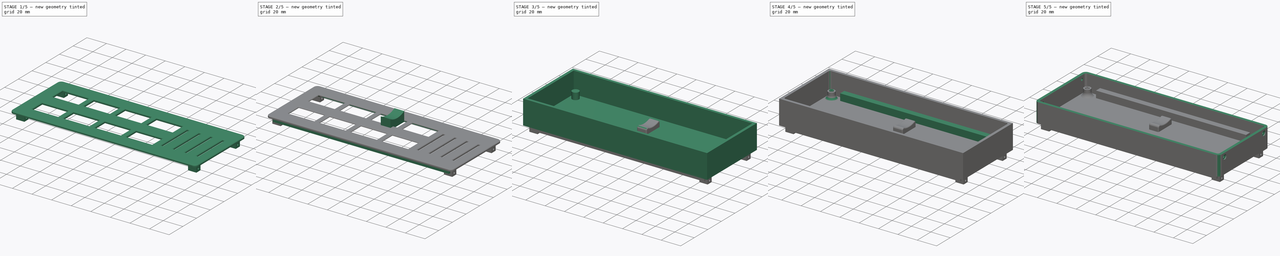
[diagram: build sequence overview — one tinted view per stage of 5, left to right]
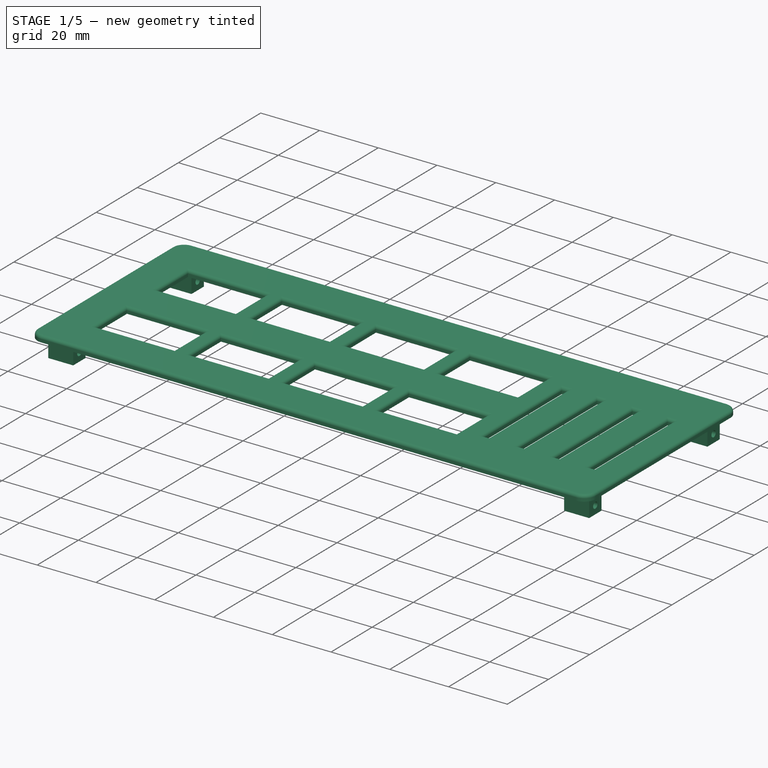
[diagram: stage 1 of 5 — iso view after this stage's code; geometry added in this stage tinted green]
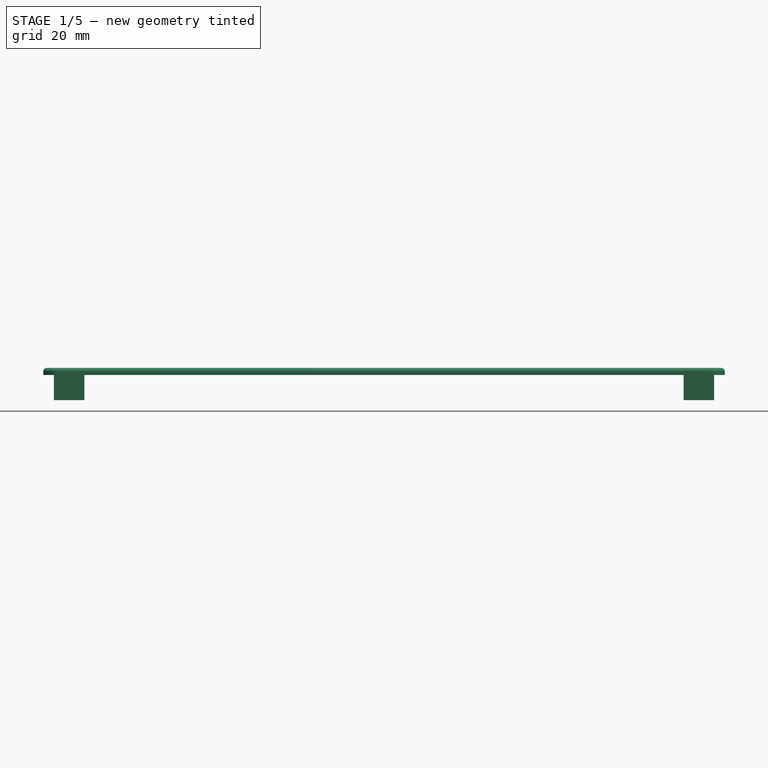
[diagram: stage 1 of 5 — front view after this stage's code; geometry added in this stage tinted green]
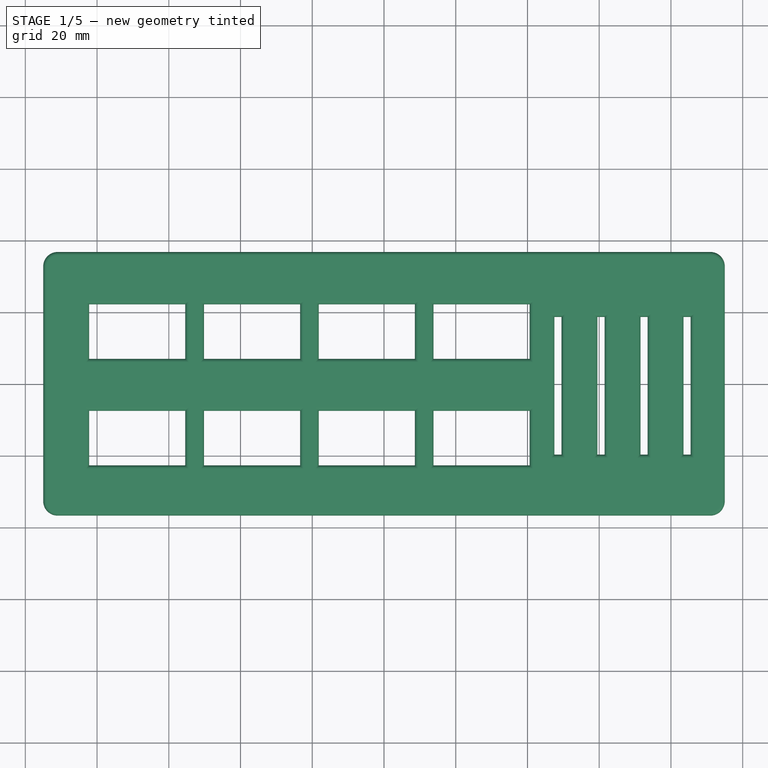
[diagram: stage 1 of 5 — top view after this stage's code; geometry added in this stage tinted green]
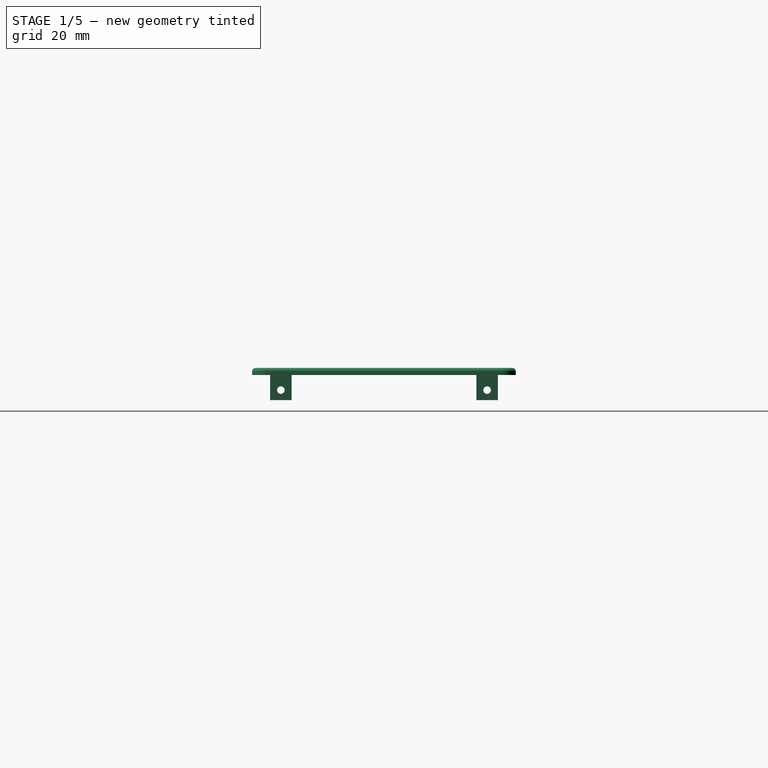
[diagram: stage 1 of 5 — right view after this stage's code; geometry added in this stage tinted green]
FCSTD DOCUMENT  (FreeCAD 0.19R24291 (Git))
Label: streamdekc
License: All rights reserved
LicenseURL: http://en.wikipedia.org/wiki/All_rights_reserved
objects: Sketcher::SketchObject×20, PartDesign::Pocket×13, PartDesign::Pad×8, PartDesign::Fillet×8, PartDesign::Chamfer×3, PartDesign::Body×3
note: 87 computed .brp shape members not serialized (recipe doc carries the construction recipe); baked Part::Feature solids carry a one-line shape summary decoded from their .brp

FEATURE [PartDesign::Body] Body  label="Base"
  Group = -> [Sketch,Pad,Sketch001,Pocket,Sketch002,Pad001,Chamfer,Fillet,Sketch003,Pocket001,Sketch004,Pocket002,Sketch005,Pad002,Sketch006,Pad003,Fillet001,Sketch007,Pocket003,Fillet002,Sketch008,Pocket004,Sketch009,Pocket005,Sketch010,Pocket006,Fillet003]
  Origin = -> Origin
  Tip = -> Fillet003
FEATURE [Sketcher::SketchObject] Sketch011
  FullyConstrained = true
  MapMode = 5
  Support = -> [XY_Plane001]
  sketch-geometry (4):
    g0: LineSegment StartX=-95 StartY=36.75 StartZ=0 EndX=95 EndY=36.75 EndZ=0
    g1: LineSegment StartX=95 StartY=36.75 StartZ=0 EndX=95 EndY=-36.75 EndZ=0
    g2: LineSegment StartX=95 StartY=-36.75 StartZ=0 EndX=-95 EndY=-36.75 EndZ=0
    g3: LineSegment StartX=-95 StartY=-36.75 StartZ=0 EndX=-95 EndY=36.75 EndZ=0
  constraints (12):
    c: Coincident(g0,g1)
    c: Coincident(g1,g2)
    c: Coincident(g2,g3)
    c: Coincident(g3,g0)
    c: Horizontal(g0)
    c: Horizontal(g2)
    c: Vertical(g1)
    c: Vertical(g3)
    c: DistanceX(g2,g2) = 190
    c: DistanceY(g1,g1) = 73.5
    c: DistanceY(g-1,g0) = 36.75
    c: DistanceX(g-1,g1) = 95
FEATURE [PartDesign::Pad] Pad004
  Direction = (1,1,1)
  Length = 2
  Length2 = 100
  Profile = -> Sketch011
  Type = 0
FEATURE [PartDesign::Fillet] Fillet004
  Base = -> Pad004 [Edge5,Edge2,Edge1,Edge8]
  BaseFeature = -> Pad004
  Radius = 4
  SupportTransform = false
FEATURE [Sketcher::SketchObject] Sketch012
  ExternalGeometry = -> [Fillet004]
  FullyConstrained = true
  MapMode = 5
  Placement = pos=(0,0,2) rot=(0,0,1;0rad)
  Support = -> [Fillet004]
  sketch-geometry (48):
    g0: LineSegment StartX=-82.2 StartY=22.15 StartZ=0 EndX=-55.4 EndY=22.15 EndZ=0
    g1: LineSegment StartX=-55.4 StartY=22.15 StartZ=0 EndX=-55.4 EndY=6.95 EndZ=0
    g2: LineSegment StartX=-55.4 StartY=6.95 StartZ=0 EndX=-82.2 EndY=6.95 EndZ=0
    g3: LineSegment StartX=-82.2 StartY=6.95 StartZ=0 EndX=-82.2 EndY=22.15 EndZ=0
    g4: LineSegment StartX=-82.2 StartY=-7.55 StartZ=0 EndX=-55.4 EndY=-7.55 EndZ=0
    g5: LineSegment StartX=-55.4 StartY=-7.55 StartZ=0 EndX=-55.4 EndY=-22.75 EndZ=0
    g6: LineSegment StartX=-55.4 StartY=-22.75 StartZ=0 EndX=-82.2 EndY=-22.75 EndZ=0
    g7: LineSegment StartX=-82.2 StartY=-22.75 StartZ=0 EndX=-82.2 EndY=-7.55 EndZ=0
    g8: LineSegment StartX=-50.2 StartY=22.15 StartZ=0 EndX=-23.4 EndY=22.15 EndZ=0
    g9: LineSegment StartX=-23.4 StartY=22.15 StartZ=0 EndX=-23.4 EndY=6.95 EndZ=0
    g10: LineSegment StartX=-23.4 StartY=6.95 StartZ=0 EndX=-50.2 EndY=6.95 EndZ=0
    g11: LineSegment StartX=-50.2 StartY=6.95 StartZ=0 EndX=-50.2 EndY=22.15 EndZ=0
    g12: LineSegment StartX=-50.2 StartY=-7.55 StartZ=0 EndX=-23.4 EndY=-7.55 EndZ=0
    g13: LineSegment StartX=-23.4 StartY=-7.55 StartZ=0 EndX=-23.4 EndY=-22.75 EndZ=0
    g14: LineSegment StartX=-23.4 StartY=-22.75 StartZ=0 EndX=-50.2 EndY=-22.75 EndZ=0
    g15: LineSegment StartX=-50.2 StartY=-22.75 StartZ=0 EndX=-50.2 EndY=-7.55 EndZ=0
    g16: LineSegment StartX=-18.2 StartY=22.15 StartZ=0 EndX=8.6 EndY=22.15 EndZ=0
    g17: LineSegment StartX=8.6 StartY=22.15 StartZ=0 EndX=8.6 EndY=6.95 EndZ=0
    g18: LineSegment StartX=8.6 StartY=6.95 StartZ=0 EndX=-18.2 EndY=6.95 EndZ=0
    g19: LineSegment StartX=-18.2 StartY=6.95 StartZ=0 EndX=-18.2 EndY=22.15 EndZ=0
    g20: LineSegment StartX=13.8 StartY=22.15 StartZ=0 EndX=40.6 EndY=22.15 EndZ=0
    g21: LineSegment StartX=40.6 StartY=22.15 StartZ=0 EndX=40.6 EndY=6.95 EndZ=0
    g22: LineSegment StartX=40.6 StartY=6.95 StartZ=0 EndX=13.8 EndY=6.95 EndZ=0
    g23: LineSegment StartX=13.8 StartY=6.95 StartZ=0 EndX=13.8 EndY=22.15 EndZ=0
    g24: LineSegment StartX=-18.2 StartY=-7.55 StartZ=0 EndX=8.6 EndY=-7.55 EndZ=0
    g25: LineSegment StartX=8.6 StartY=-7.55 StartZ=0 EndX=8.6 EndY=-22.75 EndZ=0
    g26: LineSegment StartX=8.6 StartY=-22.75 StartZ=0 EndX=-18.2 EndY=-22.75 EndZ=0
    g27: LineSegment StartX=-18.2 StartY=-22.75 StartZ=0 EndX=-18.2 EndY=-7.55 EndZ=0
    g28: LineSegment StartX=13.8 StartY=-7.55 StartZ=0 EndX=40.6 EndY=-7.55 EndZ=0
    g29: LineSegment StartX=40.6 StartY=-7.55 StartZ=0 EndX=40.6 EndY=-22.75 EndZ=0
    g30: LineSegment StartX=40.6 StartY=-22.75 StartZ=0 EndX=13.8 EndY=-22.75 EndZ=0
    g31: LineSegment StartX=13.8 StartY=-22.75 StartZ=0 EndX=13.8 EndY=-7.55 EndZ=0
    g32: LineSegment StartX=83.5 StartY=18.65 StartZ=0 EndX=85.5 EndY=18.65 EndZ=0
    g33: LineSegment StartX=85.5 StartY=18.65 StartZ=0 EndX=85.5 EndY=-19.75 EndZ=0
    g34: LineSegment StartX=85.5 StartY=-19.75 StartZ=0 EndX=83.5 EndY=-19.75 EndZ=0
    g35: LineSegment StartX=83.5 StartY=-19.75 StartZ=0 EndX=83.5 EndY=18.65 EndZ=0
    g36: LineSegment StartX=71.5 StartY=18.65 StartZ=0 EndX=73.5 EndY=18.65 EndZ=0
    g37: LineSegment StartX=73.5 StartY=18.65 StartZ=0 EndX=73.5 EndY=-19.75 EndZ=0
    g38: LineSegment StartX=73.5 StartY=-19.75 StartZ=0 EndX=71.5 EndY=-19.75 EndZ=0
    g39: LineSegment StartX=71.5 StartY=-19.75 StartZ=0 EndX=71.5 EndY=18.65 EndZ=0
    g40: LineSegment StartX=61.5 StartY=18.65 StartZ=0 EndX=59.5 EndY=18.65 EndZ=0
    g41: LineSegment StartX=59.5 StartY=18.65 StartZ=0 EndX=59.5 EndY=-19.75 EndZ=0
    g42: LineSegment StartX=59.5 StartY=-19.75 StartZ=0 EndX=61.5 EndY=-19.75 EndZ=0
    g43: LineSegment StartX=61.5 StartY=-19.75 StartZ=0 EndX=61.5 EndY=18.65 EndZ=0
    g44: LineSegment StartX=49.5 StartY=18.65 StartZ=0 EndX=47.5 EndY=18.65 EndZ=0
    g45: LineSegment StartX=47.5 StartY=18.65 StartZ=0 EndX=47.5 EndY=-19.75 EndZ=0
    g46: LineSegment StartX=47.5 StartY=-19.75 StartZ=0 EndX=49.5 EndY=-19.75 EndZ=0
    g47: LineSegment StartX=49.5 StartY=-19.75 StartZ=0 EndX=49.5 EndY=18.65 EndZ=0
  constraints (145):
    c: Coincident(g0,g1)
    c: Coincident(g1,g2)
    c: Coincident(g2,g3)
    c: Coincident(g3,g0)
    c: Horizontal(g0)
    c: Horizontal(g2)
    c: Vertical(g1)
    c: Vertical(g3)
    c: DistanceX(g0,g0) = 26.8
    c: DistanceY(g3,g3) = 15.2
    c: DistanceY(g0,g-3) = 14.6
    c: DistanceX(g-4,g0) = 12.8
    c: Coincident(g4,g5)
    c: Coincident(g5,g6)
    c: Coincident(g6,g7)
    c: Coincident(g7,g4)
    c: Horizontal(g4)
    c: Horizontal(g6)
    c: Vertical(g5)
    c: Vertical(g7)
    c: Equal(g0,g4) = 26.8
    c: Equal(g3,g7) = 15.2
    c: Vertical(g4,g2)
    c: DistanceY(g-6,g6) = 14
    c: Coincident(g8,g9)
    c: Coincident(g9,g10)
    c: Coincident(g10,g11)
    c: Coincident(g11,g8)
    c: Horizontal(g8)
    c: Horizontal(g10)
    c: Vertical(g9)
    c: Vertical(g11)
    c: Equal(g0,g8) = 26.8
    c: Equal(g3,g11) = 15.2
    c: Horizontal(g8,g0)
    c: Coincident(g12,g13)
    c: Coincident(g13,g14)
    c: Coincident(g14,g15)
    c: Coincident(g15,g12)
    c: Horizontal(g12)
    c: Horizontal(g14)
    c: Vertical(g13)
    c: Vertical(g15)
    c: Equal(g0,g12) = 26.8
    c: Equal(g3,g15) = 15.2
    c: Horizontal(g5,g14)
    c: Coincident(g16,g17)
    c: Coincident(g17,g18)
    c: Coincident(g18,g19)
    c: Coincident(g19,g16)
    c: Horizontal(g16)
    c: Horizontal(g18)
    c: Vertical(g17)
    c: Vertical(g19)
    c: Equal(g0,g16) = 26.8
    c: Equal(g3,g19) = 15.2
    c: Coincident(g20,g21)
    c: Coincident(g21,g22)
    c: Coincident(g22,g23)
    c: Coincident(g23,g20)
    c: Horizontal(g20)
    c: Horizontal(g22)
    c: Vertical(g21)
    c: Vertical(g23)
    c: Equal(g0,g20) = 26.8
    c: Equal(g3,g23) = 15.2
    c: Coincident(g24,g25)
    c: Coincident(g25,g26)
    c: Coincident(g26,g27)
    c: Coincident(g27,g24)
    c: Horizontal(g24)
    c: Horizontal(g26)
    c: Vertical(g25)
    c: Vertical(g27)
    c: Equal(g0,g24) = 26.8
    c: Equal(g3,g27) = 15.2
    c: Coincident(g28,g29)
    c: Coincident(g29,g30)
    c: Coincident(g30,g31)
    c: Coincident(g31,g28)
    c: Horizontal(g28)
    c: Horizontal(g30)
    c: Vertical(g29)
    c: Vertical(g31)
    c: Equal(g0,g28) = 26.8
    c: Equal(g3,g31) = 15.2
    c: Horizontal(g30,g25)
    c: Horizontal(g26,g13)
    c: Horizontal(g18,g9)
    c: Horizontal(g22,g17)
    c: Coincident(g32,g33)
    c: Coincident(g33,g34)
    c: Coincident(g34,g35)
    c: Coincident(g35,g32)
    c: Horizontal(g32)
    c: Horizontal(g34)
    c: Vertical(g33)
    c: Vertical(g35)
    c: DistanceX(g32,g32) = 2
    c: DistanceY(g32,g-3) = 18.1
    c: DistanceY(g-6,g33) = 17
    c: Coincident(g36,g37)
    c: Coincident(g37,g38)
    c: Coincident(g38,g39)
    c: Coincident(g39,g36)
    c: Horizontal(g36)
    c: Horizontal(g38)
    c: Vertical(g37)
    c: Vertical(g39)
    c: Equal(g32,g36) = 2
    c: Coincident(g40,g41)
    c: Coincident(g41,g42)
    c: Coincident(g42,g43)
    c: Coincident(g43,g40)
    c: Horizontal(g40)
    c: Horizontal(g42)
    c: Vertical(g41)
    c: Vertical(g43)
    c: Equal(g32,g40) = 2
    c: Coincident(g44,g45)
    c: Coincident(g45,g46)
    c: Coincident(g46,g47)
    c: Coincident(g47,g44)
    c: Horizontal(g44)
    c: Horizontal(g46)
    c: Vertical(g45)
    c: Vertical(g47)
    c: Equal(g32,g44) = 2
    c: Horizontal(g37,g34)
    c: Horizontal(g38,g41)
    c: Horizontal(g42,g45)
    c: Horizontal(g32,g36)
    c: Horizontal(g32,g40)
    c: Horizontal(g32,g44)
    c: DistanceX(g37,g33) = 12
    c: DistanceX(g20,g44) = 6.9
    c: DistanceX(g0,g8) = 32
    c: DistanceX(g8,g16) = 32
    c: DistanceX(g16,g20) = 32
    c: DistanceX(g4,g12) = 32
    c: DistanceX(g12,g24) = 32
    c: DistanceX(g24,g28) = 32
    c: DistanceX(g-4,g-5) = 190
    c: DistanceX(g42,g37) = 12
    c: DistanceX(g46,g42) = 12
FEATURE [PartDesign::Pocket] Pocket007
  BaseFeature = -> Fillet004
  Length = 5
  Length2 = 100
  Profile = -> Sketch012
  Type = 0
FEATURE [Sketcher::SketchObject] Sketch013
  ExternalGeometry = -> [Pocket007]
  FullyConstrained = true
  MapMode = 5
  Placement = pos=(0,0,0) rot=(1,0,0;3.14159rad)
  Support = -> [Pocket007]
  sketch-geometry (16):
    g0: LineSegment StartX=-92.05 StartY=31.75 StartZ=0 EndX=-83.55 EndY=31.75 EndZ=0
    g1: LineSegment StartX=-83.55 StartY=31.75 StartZ=0 EndX=-83.55 EndY=25.75 EndZ=0
    g2: LineSegment StartX=-83.55 StartY=25.75 StartZ=0 EndX=-92.05 EndY=25.75 EndZ=0
    g3: LineSegment StartX=-92.05 StartY=25.75 StartZ=0 EndX=-92.05 EndY=31.75 EndZ=0
    g4: LineSegment StartX=-92.05 StartY=-25.75 StartZ=0 EndX=-83.55 EndY=-25.75 EndZ=0
    g5: LineSegment StartX=-83.55 StartY=-25.75 StartZ=0 EndX=-83.55 EndY=-31.75 EndZ=0
    g6: LineSegment StartX=-83.55 StartY=-31.75 StartZ=0 EndX=-92.05 EndY=-31.75 EndZ=0
    g7: LineSegment StartX=-92.05 StartY=-31.75 StartZ=0 EndX=-92.05 EndY=-25.75 EndZ=0
    g8: LineSegment StartX=83.55 StartY=31.75 StartZ=0 EndX=92.05 EndY=31.75 EndZ=0
    g9: LineSegment StartX=92.05 StartY=31.75 StartZ=0 EndX=92.05 EndY=25.75 EndZ=0
    g10: LineSegment StartX=92.05 StartY=25.75 StartZ=0 EndX=83.55 EndY=25.75 EndZ=0
    g11: LineSegment StartX=83.55 StartY=25.75 StartZ=0 EndX=83.55 EndY=31.75 EndZ=0
    g12: LineSegment StartX=83.55 StartY=-25.75 StartZ=0 EndX=92.05 EndY=-25.75 EndZ=0
    g13: LineSegment StartX=92.05 StartY=-25.75 StartZ=0 EndX=92.05 EndY=-31.75 EndZ=0
    g14: LineSegment StartX=92.05 StartY=-31.75 StartZ=0 EndX=83.55 EndY=-31.75 EndZ=0
    g15: LineSegment StartX=83.55 StartY=-31.75 StartZ=0 EndX=83.55 EndY=-25.75 EndZ=0
  constraints (48):
    c: Coincident(g0,g1)
    c: Coincident(g1,g2)
    c: Coincident(g2,g3)
    c: Coincident(g3,g0)
    c: Horizontal(g0)
    c: Horizontal(g2)
    c: Vertical(g1)
    c: Vertical(g3)
    c: DistanceX(g-3,g0) = 2.95
    c: DistanceY(g0,g-3) = 1
    c: DistanceX(g0,g0) = 8.5
    c: DistanceY(g2,g-3) = 7
    c: Coincident(g4,g5)
    c: Coincident(g5,g6)
    c: Coincident(g6,g7)
    c: Coincident(g7,g4)
    c: Horizontal(g4)
    c: Horizontal(g6)
    c: Vertical(g5)
    c: Vertical(g7)
    c: Equal(g0,g4) = 8.5
    c: DistanceY(g-3,g6) = 1
    c: DistanceY(g7,g7) = 6
    c: Vertical(g2,g4)
    c: Coincident(g8,g9)
    c: Coincident(g9,g10)
    c: Coincident(g10,g11)
    c: Coincident(g11,g8)
    c: Horizontal(g8)
    c: Horizontal(g10)
    c: Vertical(g9)
    c: Vertical(g11)
    c: Equal(g0,g8) = 8.5
    c: Coincident(g12,g13)
    c: Coincident(g13,g14)
    c: Coincident(g14,g15)
    c: Coincident(g15,g12)
    c: Horizontal(g12)
    c: Horizontal(g14)
    c: Vertical(g13)
    c: Vertical(g15)
    c: Equal(g8,g12) = 8.5
    c: Equal(g7,g15) = 6
    c: Vertical(g10,g12)
    c: DistanceX(g8,g-5) = 2.95
    c: DistanceY(g8,g-5) = 1
    c: DistanceY(g9,g9) = 6
    c: DistanceY(g-5,g13) = 1
FEATURE [PartDesign::Pad] Pad005
  BaseFeature = -> Pocket007
  Direction = (1,1,1)
  Length = 7
  Length2 = 100
  Profile = -> Sketch013
  Type = 0
FEATURE [Sketcher::SketchObject] Sketch014
  ExternalGeometry = -> [Pad005]
  FullyConstrained = true
  MapMode = 5
  Placement = pos=(-92.05,0,0) rot=(0.57735,-0.57735,-0.57735;2.0944rad)
  Support = -> [Pad005]
  sketch-geometry (2):
    g0: Circle CenterX=-28.75 CenterY=-4.2 CenterZ=0 NormalX=0 NormalY=0 NormalZ=1 AngleXU=0 Radius=1.05
    g1: Circle CenterX=28.75 CenterY=-4.2 CenterZ=0 NormalX=0 NormalY=0 NormalZ=1 AngleXU=0 Radius=1.05
  constraints (6):
    c: DistanceX(g-3,g0) = 4
    c: DistanceY(g0,g-3) = 4.2
    c: Diameter(g0) = 2.1
    c: Equal(g0,g1) = 2.1
    c: DistanceX(g1,g-3) = 4
    c: DistanceY(g1,g-3) = 4.2
FEATURE [PartDesign::Pocket] Pocket008
  BaseFeature = -> Pad005
  Length = 200
  Length2 = 100
  Profile = -> Sketch014
  Type = 0
FEATURE [PartDesign::Fillet] Fillet005
  Base = -> Pocket008 [Face5]
  BaseFeature = -> Pocket008
  Radius = 1
  SupportTransform = false
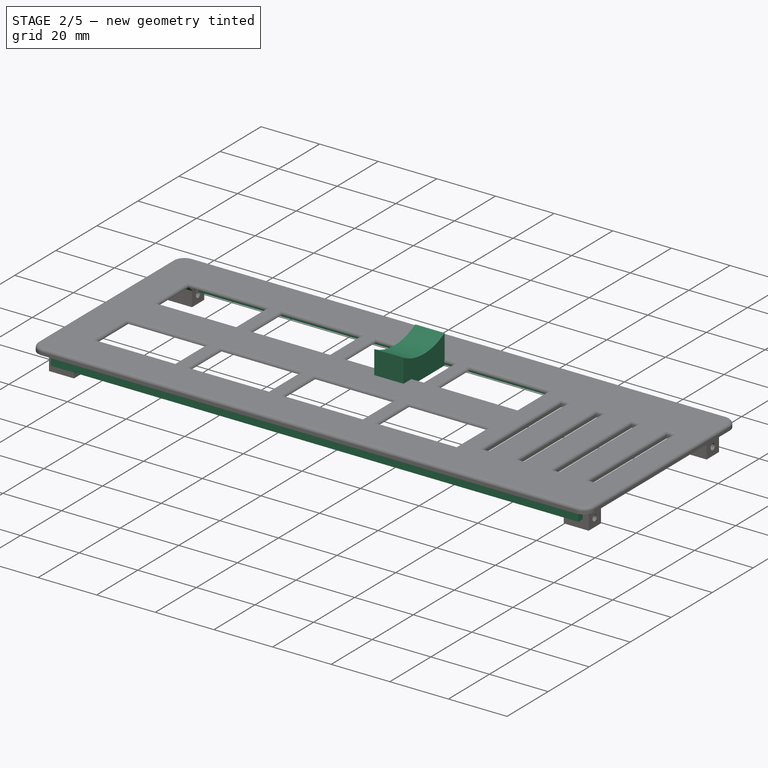
[diagram: stage 2 of 5 — iso view after this stage's code; geometry added in this stage tinted green]
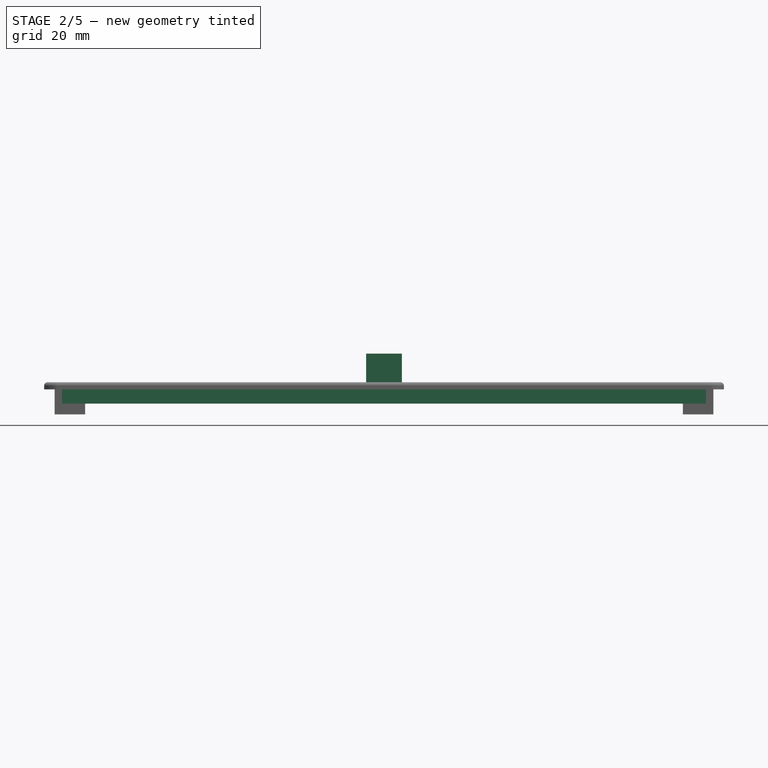
[diagram: stage 2 of 5 — front view after this stage's code; geometry added in this stage tinted green]
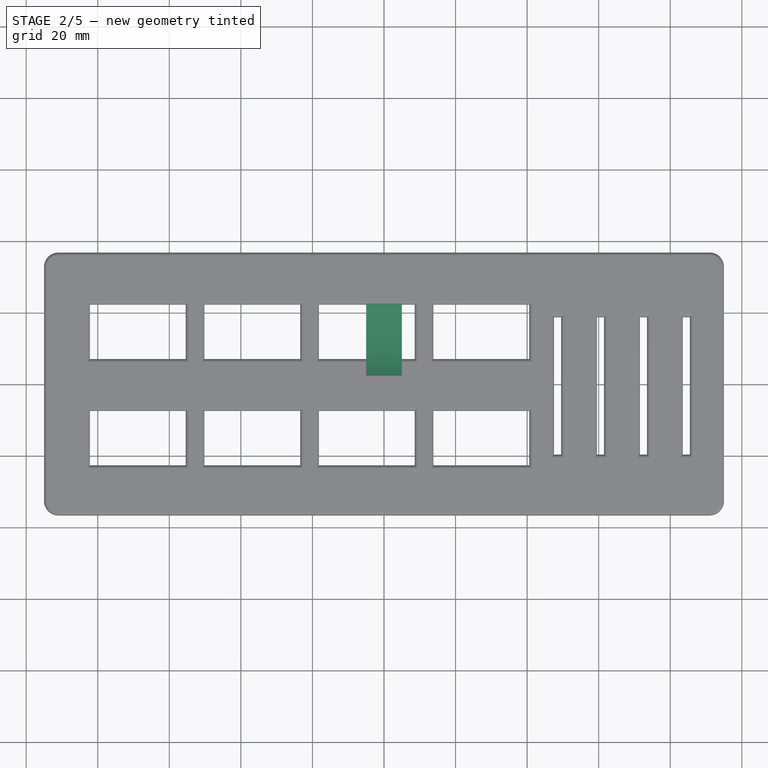
[diagram: stage 2 of 5 — top view after this stage's code; geometry added in this stage tinted green]
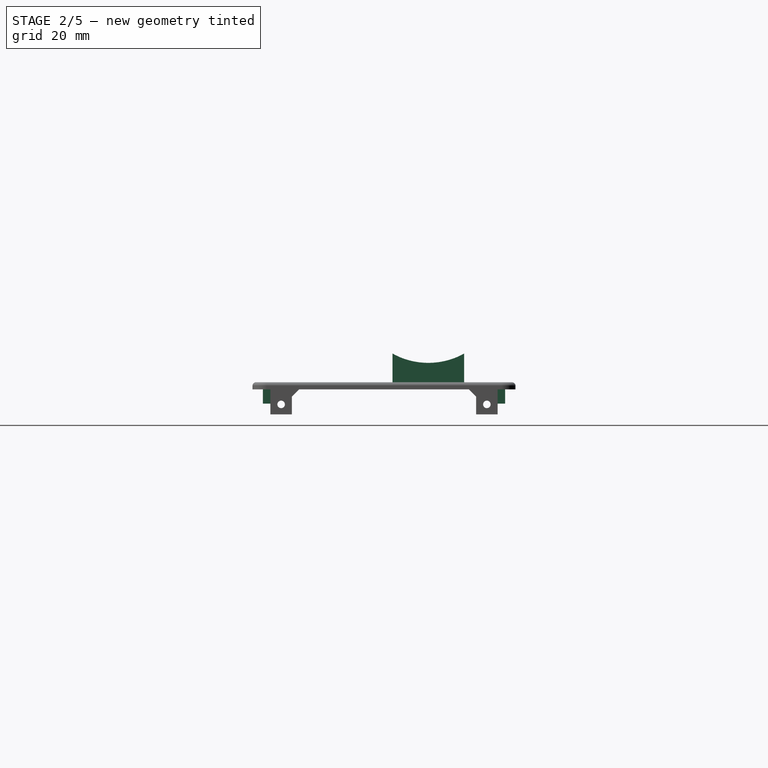
[diagram: stage 2 of 5 — right view after this stage's code; geometry added in this stage tinted green]
FEATURE [PartDesign::Chamfer] Chamfer001
  Angle = 45
  Base = -> Fillet005 [Edge80,Edge79,Edge42,Edge43,Edge64,Edge61,Edge18,Edge17]
  BaseFeature = -> Fillet005
  ChamferType = 0
  FlipDirection = false
  Size = 2
  Size2 = 1
  SupportTransform = false
FEATURE [Sketcher::SketchObject] Sketch015
  ExternalGeometry = -> [Chamfer001]
  FullyConstrained = true
  MapMode = 5
  Placement = pos=(0,0,0) rot=(1,0,0;3.14159rad)
  Support = -> [Chamfer001]
  sketch-geometry (8):
    g0: LineSegment StartX=-90 StartY=33.85 StartZ=0 EndX=90 EndY=33.85 EndZ=0
    g1: LineSegment StartX=90 StartY=33.85 StartZ=0 EndX=90 EndY=30.95 EndZ=0
    g2: LineSegment StartX=90 StartY=30.95 StartZ=0 EndX=-90 EndY=30.95 EndZ=0
    g3: LineSegment StartX=-90 StartY=30.95 StartZ=0 EndX=-90 EndY=33.85 EndZ=0
    g4: LineSegment StartX=-90 StartY=-27.95 StartZ=0 EndX=90 EndY=-27.95 EndZ=0
    g5: LineSegment StartX=90 StartY=-27.95 StartZ=0 EndX=90 EndY=-33.85 EndZ=0
    g6: LineSegment StartX=90 StartY=-33.85 StartZ=0 EndX=-90 EndY=-33.85 EndZ=0
    g7: LineSegment StartX=-90 StartY=-33.85 StartZ=0 EndX=-90 EndY=-27.95 EndZ=0
  constraints (24):
    c: Coincident(g0,g1)
    c: Coincident(g1,g2)
    c: Coincident(g2,g3)
    c: Coincident(g3,g0)
    c: Horizontal(g0)
    c: Horizontal(g2)
    c: Vertical(g1)
    c: Vertical(g3)
    c: Coincident(g4,g5)
    c: Coincident(g5,g6)
    c: Coincident(g6,g7)
    c: Coincident(g7,g4)
    c: Horizontal(g4)
    c: Horizontal(g6)
    c: Vertical(g5)
    c: Vertical(g7)
    c: DistanceX(g-4,g0) = 1
    c: DistanceY(g0,g-6) = 2.9
    c: DistanceX(g-5,g6) = 1
    c: DistanceY(g-5,g6) = 2.9
    c: DistanceX(g5,g-3) = 1
    c: DistanceX(g0,g-6) = 1
    c: DistanceY(g3,g3) = 2.9
    c: DistanceY(g7,g7) = 5.9
FEATURE [PartDesign::Pad] Pad006
  BaseFeature = -> Chamfer001
  Direction = (1,1,1)
  Length = 4
  Length2 = 100
  Profile = -> Sketch015
  Type = 0
FEATURE [PartDesign::Pocket] Pocket009
  BaseFeature = -> Pad006
  Length = 200
  Length2 = 100
  Profile = -> Pad006 [Face145]
  Refine = true
  Type = 0
FEATURE [PartDesign::Chamfer] Chamfer002
  Angle = 45
  Base = -> Pocket009 [Edge66,Edge32]
  BaseFeature = -> Pocket009
  ChamferType = 0
  FlipDirection = false
  Size = 2
  Size2 = 1
  SupportTransform = false
FEATURE [Sketcher::SketchObject] Sketch016
  FullyConstrained = false
  MapMode = 5
  Support = -> [XY_Plane002]
  sketch-geometry (4):
    g0: LineSegment StartX=-5 StartY=22.392 StartZ=0 EndX=5 EndY=22.392 EndZ=0
    g1: LineSegment StartX=5 StartY=22.392 StartZ=0 EndX=5 EndY=2.39201 EndZ=0
    g2: LineSegment StartX=5 StartY=2.39201 StartZ=0 EndX=-5 EndY=2.39201 EndZ=0
    g3: LineSegment StartX=-5 StartY=2.39201 StartZ=0 EndX=-5 EndY=22.392 EndZ=0
  constraints (11):
    c: Coincident(g0,g1)
    c: Coincident(g1,g2)
    c: Coincident(g2,g3)
    c: Coincident(g3,g0)
    c: Horizontal(g0)
    c: Horizontal(g2)
    c: Vertical(g1)
    c: Vertical(g3)
    c: DistanceX(g0,g0) = 10
    c: DistanceX(g-1,g0) = 5
    c: DistanceY(g1,g1) = 20
FEATURE [PartDesign::Pad] Pad007
  Direction = (1,1,1)
  Length = 10
  Length2 = 100
  Profile = -> Sketch016
  Type = 0
FEATURE [Sketcher::SketchObject] Sketch017
  ExternalGeometry = -> [Pad007]
  FullyConstrained = true
  MapMode = 5
  Placement = pos=(5,0,0) rot=(0.57735,0.57735,0.57735;2.0944rad)
  Support = -> [Pad007]
  sketch-geometry (2):
    g0: ArcOfCircle CenterX=12.392 CenterY=28 CenterZ=0 NormalX=0 NormalY=0 NormalZ=1 AngleXU=0 Radius=20.5913 StartAngle=4.20529 EndAngle=5.21949
    g1: LineSegment StartX=2.39201 StartY=10 StartZ=0 EndX=22.392 EndY=10 EndZ=0
  constraints (6):
    c: Coincident(g0,g-3)
    c: Coincident(g0,g-3)
    c: DistanceX(g-3,g-3) = 20
    c: DistanceY(g0,g0) = 18
    c: Coincident(g1,g0)
    c: Coincident(g1,g0)
FEATURE [PartDesign::Pocket] Pocket010
  BaseFeature = -> Pad007
  Length = 11
  Length2 = 100
  Profile = -> Sketch017
  Type = 0
FEATURE [PartDesign::Body] Body002  label="Slider"
  Group = -> [Sketch016,Pad007,Sketch017,Pocket010,Fillet006,Sketch018,Pocket011,Fillet007]
  Origin = -> Origin002
  Placement = pos=(48.5,0,22.5) rot=(0,0,1;0rad)
  Tip = -> Fillet007
FEATURE [Sketcher::SketchObject] Sketch019
  ExternalGeometry = -> [Chamfer002]
  FullyConstrained = true
  MapMode = 5
  Placement = pos=(0,0,0) rot=(1,0,0;3.14159rad)
  Support = -> [Chamfer002]
  sketch-geometry (4):
    g0: LineSegment StartX=-83.2 StartY=-28.65 StartZ=0 EndX=41.3 EndY=-28.65 EndZ=0
    g1: LineSegment StartX=41.3 StartY=-28.65 StartZ=0 EndX=41.3 EndY=31.15 EndZ=0
    g2: LineSegment StartX=41.3 StartY=31.15 StartZ=0 EndX=-83.2 EndY=31.15 EndZ=0
    g3: LineSegment StartX=-83.2 StartY=31.15 StartZ=0 EndX=-83.2 EndY=-28.65 EndZ=0
  constraints (12):
    c: Coincident(g0,g1)
    c: Coincident(g1,g2)
    c: Coincident(g2,g3)
    c: Coincident(g3,g0)
    c: Horizontal(g0)
    c: Horizontal(g2)
    c: Vertical(g1)
    c: Vertical(g3)
    c: DistanceY(g-3,g1) = 8.4
    c: DistanceX(g-3,g2) = -1
    c: DistanceY(g0,g-4) = 6.5
    c: DistanceX(g-4,g0) = 0.7
FEATURE [PartDesign::Pocket] Pocket012
  BaseFeature = -> Chamfer002
  Length = 1
  Length2 = 100
  Profile = -> Sketch019
  Type = 4
FEATURE [PartDesign::Body] Body001  label="Lid"
  Group = -> [Sketch011,Pad004,Fillet004,Sketch012,Pocket007,Sketch013,Pad005,Sketch014,Pocket008,Fillet005,Chamfer001,Sketch015,Pad006,Pocket009,Chamfer002,Sketch019,Pocket012]
  Origin = -> Origin001
  Placement = pos=(0,0,20.2) rot=(0,0,1;0rad)
  Tip = -> Pocket012
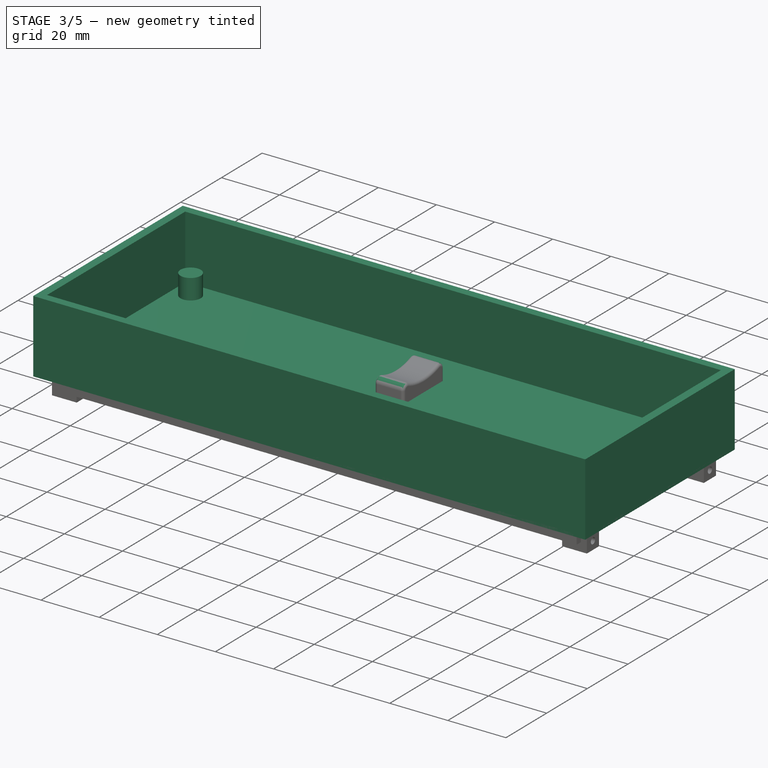
[diagram: stage 3 of 5 — iso view after this stage's code; geometry added in this stage tinted green]
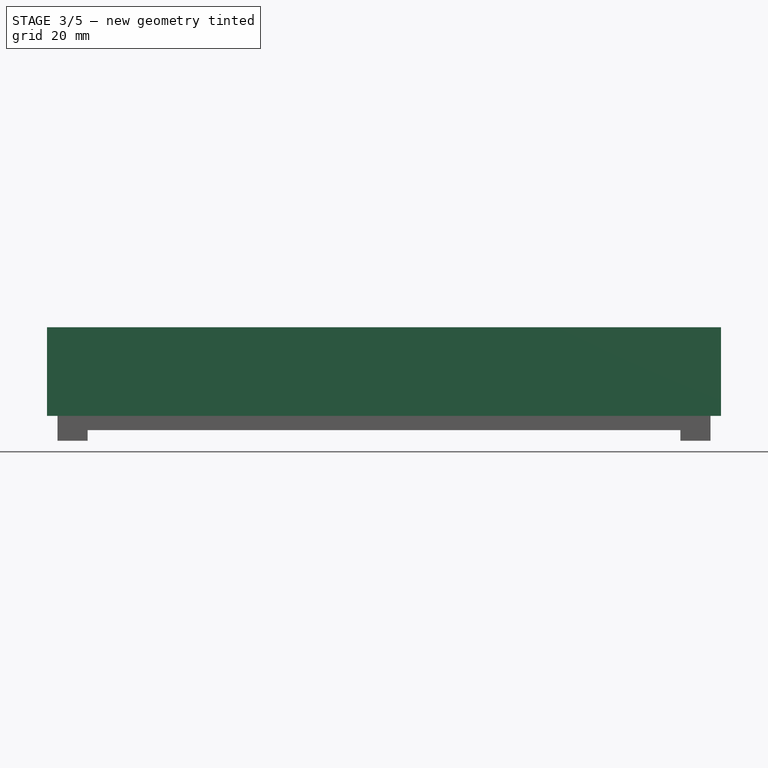
[diagram: stage 3 of 5 — front view after this stage's code; geometry added in this stage tinted green]
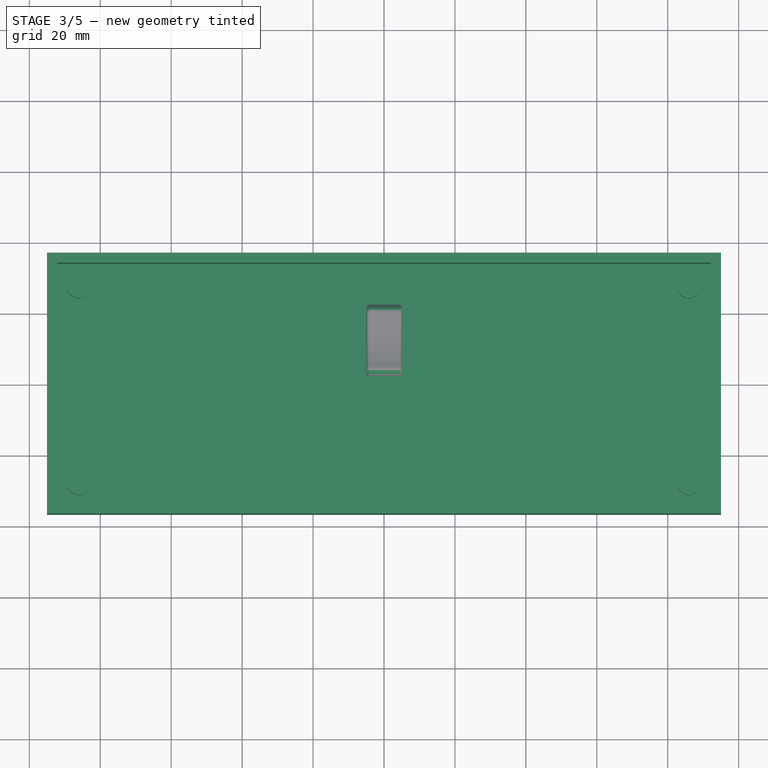
[diagram: stage 3 of 5 — top view after this stage's code; geometry added in this stage tinted green]
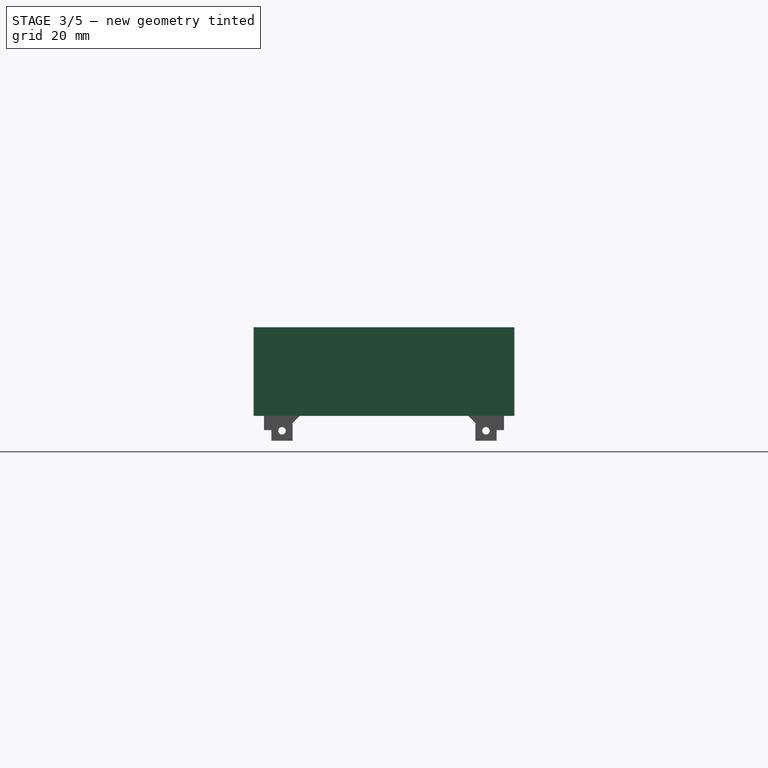
[diagram: stage 3 of 5 — right view after this stage's code; geometry added in this stage tinted green]
FEATURE [Sketcher::SketchObject] Sketch
  FullyConstrained = true
  MapMode = 5
  Support = -> [XY_Plane]
  sketch-geometry (4):
    g0: LineSegment StartX=-95 StartY=36.75 StartZ=0 EndX=95 EndY=36.75 EndZ=0
    g1: LineSegment StartX=95 StartY=36.75 StartZ=0 EndX=95 EndY=-36.75 EndZ=0
    g2: LineSegment StartX=95 StartY=-36.75 StartZ=0 EndX=-95 EndY=-36.75 EndZ=0
    g3: LineSegment StartX=-95 StartY=-36.75 StartZ=0 EndX=-95 EndY=36.75 EndZ=0
  constraints (12):
    c: Coincident(g0,g1)
    c: Coincident(g1,g2)
    c: Coincident(g2,g3)
    c: Coincident(g3,g0)
    c: Horizontal(g0)
    c: Horizontal(g2)
    c: Vertical(g1)
    c: Vertical(g3)
    c: DistanceX(g0,g0) = 190
    c: DistanceY(g1,g1) = 73.5
    c: DistanceY(g-1,g0) = 36.75
    c: DistanceX(g-1,g0) = 95
FEATURE [PartDesign::Pad] Pad
  Direction = (1,1,1)
  Length = 25
  Length2 = 100
  Profile = -> Sketch
  Type = 0
FEATURE [Sketcher::SketchObject] Sketch001
  ExternalGeometry = -> [Pad]
  FullyConstrained = true
  MapMode = 5
  Placement = pos=(0,0,25) rot=(0,0,1;0rad)
  Support = -> [Pad]
  sketch-geometry (4):
    g0: LineSegment StartX=-92.2 StartY=33.95 StartZ=0 EndX=92.2 EndY=33.95 EndZ=0
    g1: LineSegment StartX=92.2 StartY=33.95 StartZ=0 EndX=92.2 EndY=-33.95 EndZ=0
    g2: LineSegment StartX=92.2 StartY=-33.95 StartZ=0 EndX=-92.2 EndY=-33.95 EndZ=0
    g3: LineSegment StartX=-92.2 StartY=-33.95 StartZ=0 EndX=-92.2 EndY=33.95 EndZ=0
  constraints (12):
    c: Coincident(g0,g1)
    c: Coincident(g1,g2)
    c: Coincident(g2,g3)
    c: Coincident(g3,g0)
    c: Horizontal(g0)
    c: Horizontal(g2)
    c: Vertical(g1)
    c: Vertical(g3)
    c: DistanceY(g0,g-3) = 2.8
    c: DistanceY(g-4,g1) = 2.8
    c: DistanceX(g1,g-4) = 2.8
    c: DistanceX(g-3,g0) = 2.8
FEATURE [PartDesign::Pocket] Pocket
  BaseFeature = -> Pad
  Length = 22
  Length2 = 100
  Profile = -> Sketch001
  Type = 0
FEATURE [Sketcher::SketchObject] Sketch002
  FullyConstrained = true
  MapMode = 5
  Placement = pos=(0,0,3) rot=(0,0,1;0rad)
  Support = -> [Pocket]
  sketch-geometry (4):
    g0: Circle CenterX=-86 CenterY=27.75 CenterZ=0 NormalX=0 NormalY=0 NormalZ=1 AngleXU=0 Radius=3.5
    g1: Circle CenterX=86 CenterY=27.75 CenterZ=0 NormalX=0 NormalY=0 NormalZ=1 AngleXU=0 Radius=3.5
    g2: Circle CenterX=-86 CenterY=-27.75 CenterZ=0 NormalX=0 NormalY=0 NormalZ=1 AngleXU=0 Radius=3.5
    g3: Circle CenterX=86 CenterY=-27.75 CenterZ=0 NormalX=0 NormalY=0 NormalZ=1 AngleXU=0 Radius=3.5
  constraints (12):
    c: Diameter(g0) = 7
    c: Equal(g0,g1) = 7
    c: Equal(g0,g2) = 7
    c: Equal(g0,g3) = 7
    c: Horizontal(g0,g1)
    c: Horizontal(g3,g2)
    c: Vertical(g0,g2)
    c: Vertical(g3,g1)
    c: DistanceY(g2,g0) = 55.5
    c: DistanceX(g0,g1) = 172
    c: DistanceX(g0,g-1) = 86
    c: DistanceY(g2,g-1) = 27.75
FEATURE [PartDesign::Pad] Pad001
  BaseFeature = -> Pocket
  Direction = (1,1,1)
  Length = 7
  Length2 = 100
  Profile = -> Sketch002
  Type = 0
FEATURE [PartDesign::Fillet] Fillet006
  Base = -> Pocket010 [Edge12,Edge4]
  BaseFeature = -> Pocket010
  Radius = 2
  SupportTransform = false
FEATURE [Sketcher::SketchObject] Sketch018
  ExternalGeometry = -> [Fillet006]
  FullyConstrained = true
  MapMode = 5
  Placement = pos=(0,0,0) rot=(1,0,0;3.14159rad)
  Support = -> [Fillet006]
  sketch-geometry (4):
    g0: LineSegment StartX=-0.575 StartY=-10.317 StartZ=0 EndX=0.575 EndY=-10.317 EndZ=0
    g1: LineSegment StartX=0.575 StartY=-10.317 StartZ=0 EndX=0.575 EndY=-14.467 EndZ=0
    g2: LineSegment StartX=0.575 StartY=-14.467 StartZ=0 EndX=-0.575 EndY=-14.467 EndZ=0
    g3: LineSegment StartX=-0.575 StartY=-14.467 StartZ=0 EndX=-0.575 EndY=-10.317 EndZ=0
  constraints (13):
    c: Coincident(g0,g1)
    c: Coincident(g1,g2)
    c: Coincident(g2,g3)
    c: Coincident(g3,g0)
    c: Horizontal(g0)
    c: Horizontal(g2)
    c: Vertical(g1)
    c: Vertical(g3)
    c: DistanceX(g0,g0) = 1.15
    c: DistanceX(g0,g-1) = 0.575
    c: DistanceY(g1,g1) = 4.15
    c: DistanceY(g-4,g-4) = 20
    c: DistanceY(g0,g-4) = 7.925
FEATURE [PartDesign::Pocket] Pocket011
  BaseFeature = -> Fillet006
  Length = 5.6
  Length2 = 100
  Profile = -> Sketch018
  Type = 0
FEATURE [PartDesign::Fillet] Fillet007
  Base = -> Pocket011 [Face2,Face5,Edge13,Edge3]
  BaseFeature = -> Pocket011
  Radius = 1
  SupportTransform = false
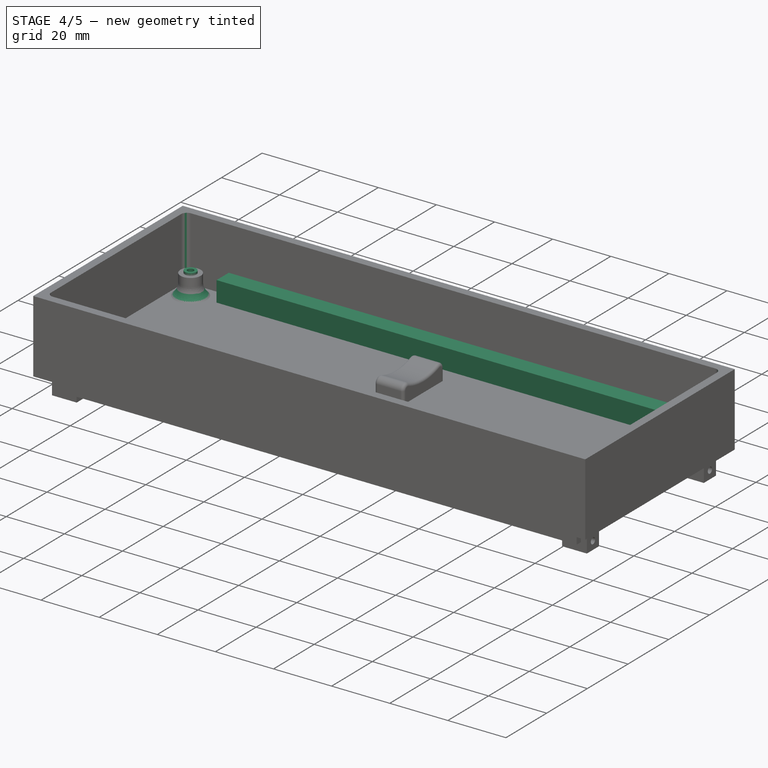
[diagram: stage 4 of 5 — iso view after this stage's code; geometry added in this stage tinted green]
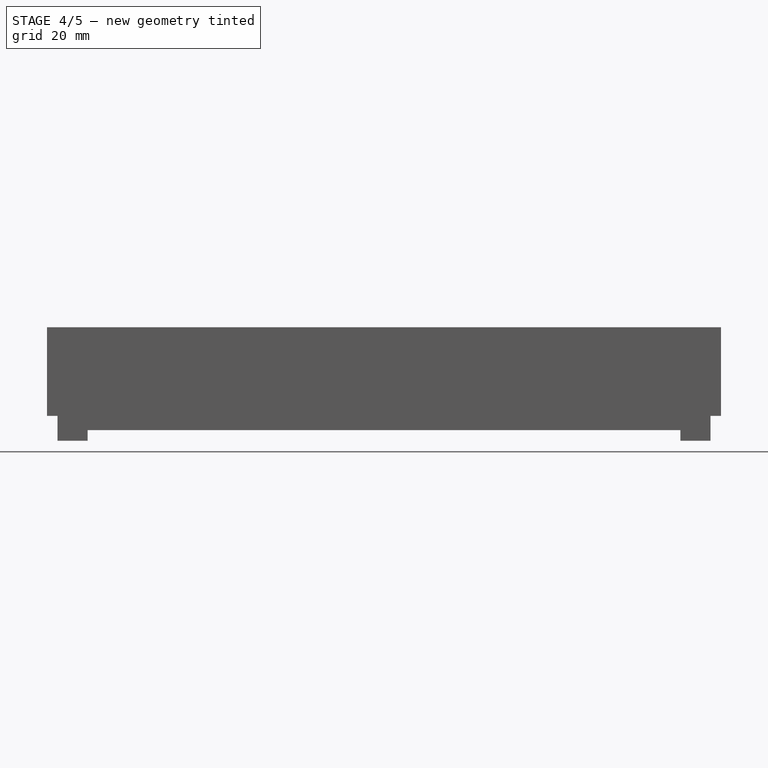
[diagram: stage 4 of 5 — front view after this stage's code; geometry added in this stage tinted green]
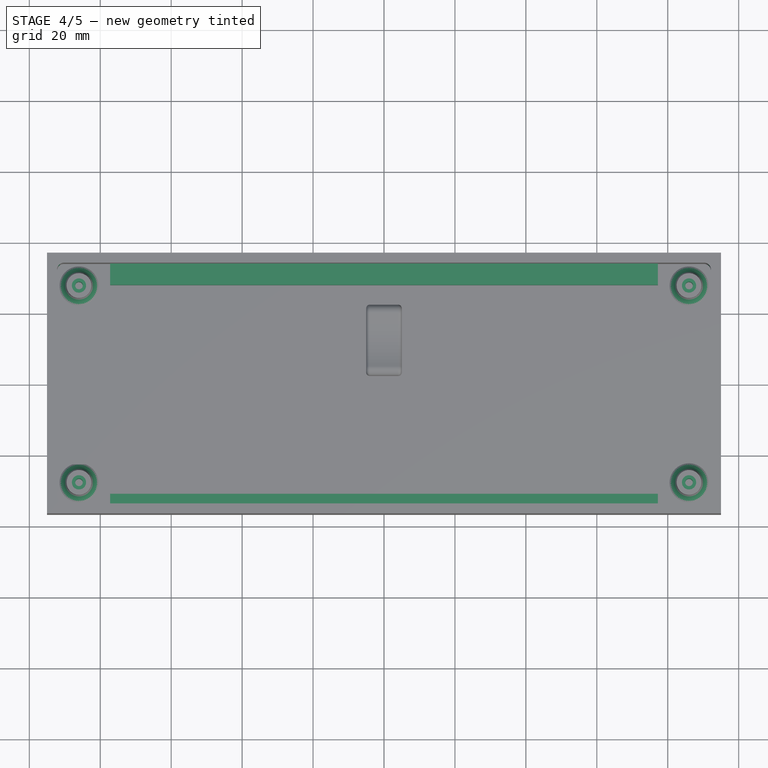
[diagram: stage 4 of 5 — top view after this stage's code; geometry added in this stage tinted green]
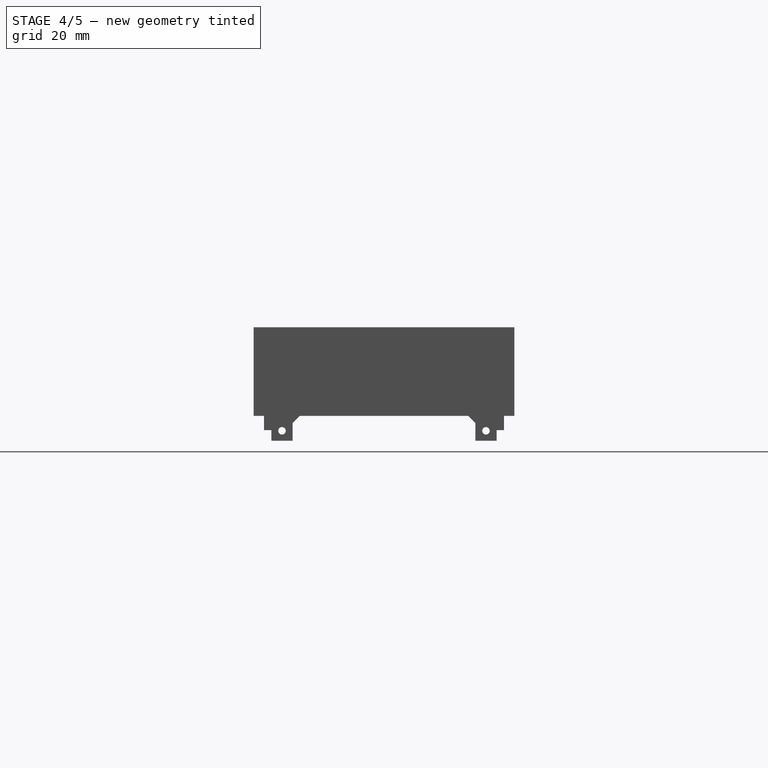
[diagram: stage 4 of 5 — right view after this stage's code; geometry added in this stage tinted green]
FEATURE [PartDesign::Chamfer] Chamfer
  Angle = 45
  Base = -> Pad001 [Edge28,Edge26,Edge27,Edge25]
  BaseFeature = -> Pad001
  ChamferType = 0
  FlipDirection = false
  Size = 2
  Size2 = 1
  SupportTransform = false
FEATURE [PartDesign::Fillet] Fillet
  Base = -> Chamfer [Edge20,Edge10,Edge24,Edge22]
  BaseFeature = -> Chamfer
  Radius = 5
  SupportTransform = false
FEATURE [Sketcher::SketchObject] Sketch003
  ExternalGeometry = -> [Fillet]
  FullyConstrained = true
  MapMode = 5
  Placement = pos=(0,0,10) rot=(0,0,1;0rad)
  Support = -> [Fillet]
  sketch-geometry (4):
    g0: Circle CenterX=-86 CenterY=27.75 CenterZ=0 NormalX=0 NormalY=0 NormalZ=1 AngleXU=0 Radius=1.075
    g1: Circle CenterX=-86 CenterY=-27.75 CenterZ=0 NormalX=0 NormalY=0 NormalZ=1 AngleXU=0 Radius=1.075
    g2: Circle CenterX=86 CenterY=27.75 CenterZ=0 NormalX=0 NormalY=0 NormalZ=1 AngleXU=0 Radius=1.075
    g3: Circle CenterX=86 CenterY=-27.75 CenterZ=0 NormalX=0 NormalY=0 NormalZ=1 AngleXU=0 Radius=1.075
  constraints (8):
    c: Coincident(g0,g-4)
    c: Coincident(g1,g-3)
    c: Coincident(g2,g-5)
    c: Coincident(g3,g-6)
    c: Diameter(g3) = 2.15
    c: Diameter(g2) = 2.15
    c: Diameter(g0) = 2.15
    c: Diameter(g1) = 2.15
FEATURE [PartDesign::Pocket] Pocket001
  BaseFeature = -> Fillet
  Length = 7.9
  Length2 = 100
  Profile = -> Sketch003
  Type = 0
FEATURE [Sketcher::SketchObject] Sketch004
  ExternalGeometry = -> [Pocket001]
  FullyConstrained = true
  MapMode = 5
  Placement = pos=(-95,0,0) rot=(0.57735,-0.57735,-0.57735;2.0944rad)
  Support = -> [Pocket001]
  sketch-geometry (4):
    g0: LineSegment StartX=22.55 StartY=2.8 StartZ=0 EndX=13.25 EndY=2.8 EndZ=0
    g1: LineSegment StartX=13.25 StartY=2.8 StartZ=0 EndX=13.25 EndY=6 EndZ=0
    g2: LineSegment StartX=13.25 StartY=6 StartZ=0 EndX=22.55 EndY=6 EndZ=0
    g3: LineSegment StartX=22.55 StartY=6 StartZ=0 EndX=22.55 EndY=2.8 EndZ=0
  constraints (12):
    c: Coincident(g0,g1)
    c: Coincident(g1,g2)
    c: Coincident(g2,g3)
    c: Coincident(g3,g0)
    c: Horizontal(g0)
    c: Horizontal(g2)
    c: Vertical(g1)
    c: Vertical(g3)
    c: DistanceX(g0,g-3) = 14.2
    c: DistanceX(g2,g2) = 9.3
    c: DistanceY(g1,g1) = 3.2
    c: DistanceY(g2,g-4) = 4
FEATURE [PartDesign::Pocket] Pocket002
  BaseFeature = -> Pocket001
  Length = 12
  Length2 = 100
  Profile = -> Sketch004
  Type = 0
FEATURE [Sketcher::SketchObject] Sketch005
  ExternalGeometry = -> [Pocket002]
  FullyConstrained = true
  MapMode = 5
  Placement = pos=(0,0,10) rot=(0,0,1;0rad)
  Support = -> [Pocket002]
  sketch-geometry (8):
    g0: Circle CenterX=-86 CenterY=27.75 CenterZ=0 NormalX=0 NormalY=0 NormalZ=1 AngleXU=0 Radius=2
    g1: Circle CenterX=-86 CenterY=27.75 CenterZ=0 NormalX=0 NormalY=0 NormalZ=1 AngleXU=0 Radius=1.075
    g2: Circle CenterX=-86 CenterY=-27.75 CenterZ=0 NormalX=0 NormalY=0 NormalZ=1 AngleXU=0 Radius=2
    g3: Circle CenterX=-86 CenterY=-27.75 CenterZ=0 NormalX=0 NormalY=0 NormalZ=1 AngleXU=0 Radius=1.075
    g4: Circle CenterX=86 CenterY=-27.75 CenterZ=0 NormalX=0 NormalY=0 NormalZ=1 AngleXU=0 Radius=2
    g5: Circle CenterX=86 CenterY=-27.75 CenterZ=0 NormalX=0 NormalY=0 NormalZ=1 AngleXU=0 Radius=1.075
    g6: Circle CenterX=86 CenterY=27.75 CenterZ=0 NormalX=0 NormalY=0 NormalZ=1 AngleXU=0 Radius=1.075
    g7: Circle CenterX=86 CenterY=27.75 CenterZ=0 NormalX=0 NormalY=0 NormalZ=1 AngleXU=0 Radius=2
  constraints (17):
    c: Coincident(g0,g-4)
    c: Diameter(g0) = 4
    c: Coincident(g1,g0)
    c: Diameter(g-3) = 2.15
    c: Diameter(g1) = 2.15
    c: Coincident(g2,g-6)
    c: Coincident(g3,g2)
    c: Diameter(g3) = 2.15
    c: Diameter(g2) = 4
    c: Coincident(g4,g-7)
    c: Coincident(g5,g4)
    c: Diameter(g5) = 2.15
    c: Diameter(g4) = 4
    c: Coincident(g6,g-8)
    c: Coincident(g7,g6)
    c: Diameter(g7) = 4
    c: Diameter(g6) = 2.15
FEATURE [PartDesign::Pad] Pad002
  BaseFeature = -> Pocket002
  Direction = (1,1,1)
  Length = 0.8
  Length2 = 100
  Profile = -> Sketch005
  Refine = true
  Type = 0
FEATURE [Sketcher::SketchObject] Sketch006
  ExternalGeometry = -> [Pad002]
  FullyConstrained = true
  MapMode = 5
  Placement = pos=(0,0,3) rot=(0,0,1;0rad)
  Support = -> [Pad002]
  sketch-geometry (8):
    g0: LineSegment StartX=-77.2 StartY=-33.95 StartZ=0 EndX=77.2 EndY=-33.95 EndZ=0
    g1: LineSegment StartX=77.2 StartY=-33.95 StartZ=0 EndX=77.2 EndY=-30.95 EndZ=0
    g2: LineSegment StartX=77.2 StartY=-30.95 StartZ=0 EndX=-77.2 EndY=-30.95 EndZ=0
    g3: LineSegment StartX=-77.2 StartY=-30.95 StartZ=0 EndX=-77.2 EndY=-33.95 EndZ=0
    g4: LineSegment StartX=-77.2 StartY=33.95 StartZ=0 EndX=77.2 EndY=33.95 EndZ=0
    g5: LineSegment StartX=77.2 StartY=33.95 StartZ=0 EndX=77.2 EndY=27.95 EndZ=0
    g6: LineSegment StartX=77.2 StartY=27.95 StartZ=0 EndX=-77.2 EndY=27.95 EndZ=0
    g7: LineSegment StartX=-77.2 StartY=27.95 StartZ=0 EndX=-77.2 EndY=33.95 EndZ=0
  constraints (24):
    c: Coincident(g0,g1)
    c: Coincident(g1,g2)
    c: Coincident(g2,g3)
    c: Coincident(g3,g0)
    c: Horizontal(g0)
    c: Horizontal(g2)
    c: Vertical(g1)
    c: Vertical(g3)
    c: PointOnObject(g0,g-4)
    c: Coincident(g4,g5)
    c: Coincident(g5,g6)
    c: Coincident(g6,g7)
    c: Coincident(g7,g4)
    c: Horizontal(g4)
    c: Horizontal(g6)
    c: Vertical(g5)
    c: Vertical(g7)
    c: PointOnObject(g4,g-3)
    c: DistanceX(g-4,g0) = 15
    c: DistanceX(g-3,g6) = 15
    c: DistanceX(g4,g-3) = 15
    c: DistanceX(g1,g-4) = 15
    c: DistanceY(g1,g1) = 3
    c: DistanceY(g5,g5) = 6
FEATURE [PartDesign::Pad] Pad003
  BaseFeature = -> Pad002
  Direction = (1,1,1)
  Length = 7
  Length2 = 100
  Profile = -> Sketch006
  Refine = true
  Type = 0
FEATURE [PartDesign::Fillet] Fillet001
  Base = -> Pad003 [Edge50,Edge63,Edge57,Edge52]
  BaseFeature = -> Pad003
  Radius = 2
  SupportTransform = false
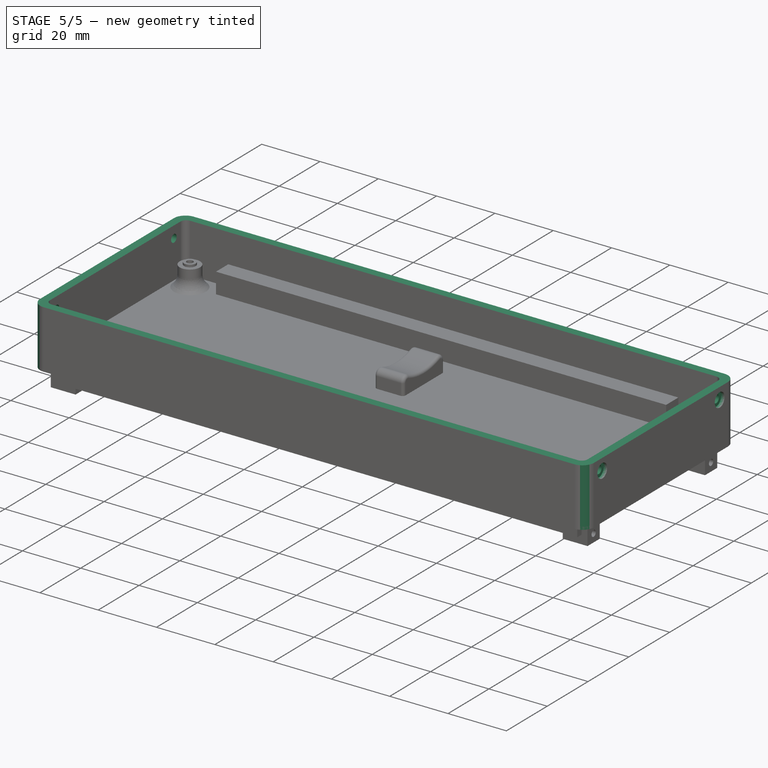
[diagram: stage 5 of 5 — iso view after this stage's code; geometry added in this stage tinted green]
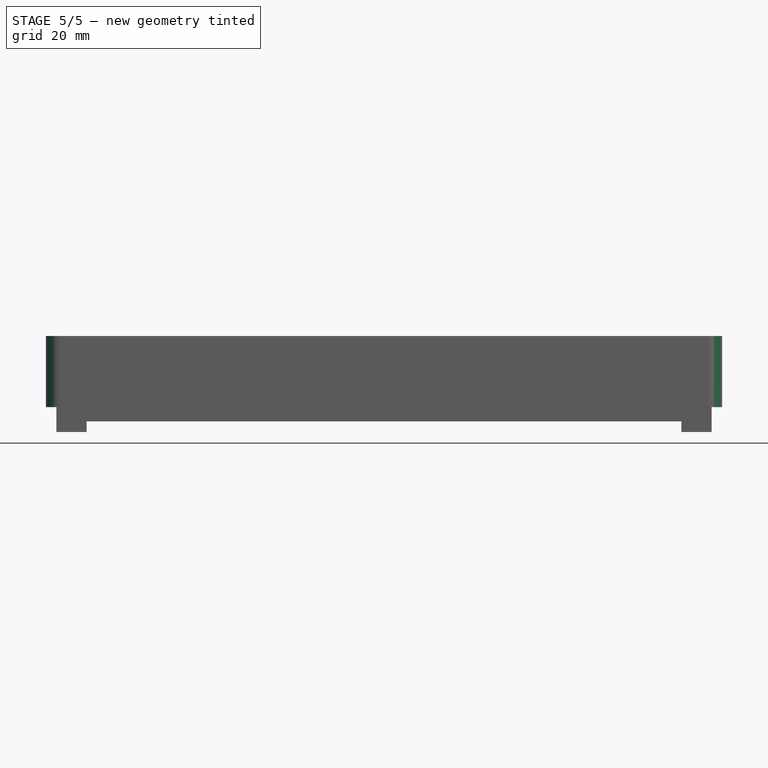
[diagram: stage 5 of 5 — front view after this stage's code; geometry added in this stage tinted green]
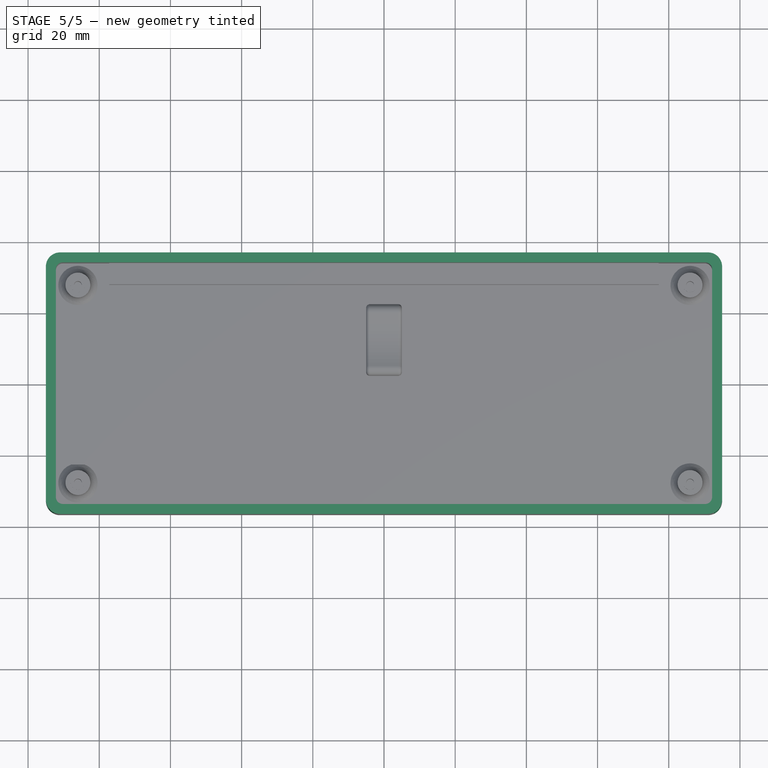
[diagram: stage 5 of 5 — top view after this stage's code; geometry added in this stage tinted green]
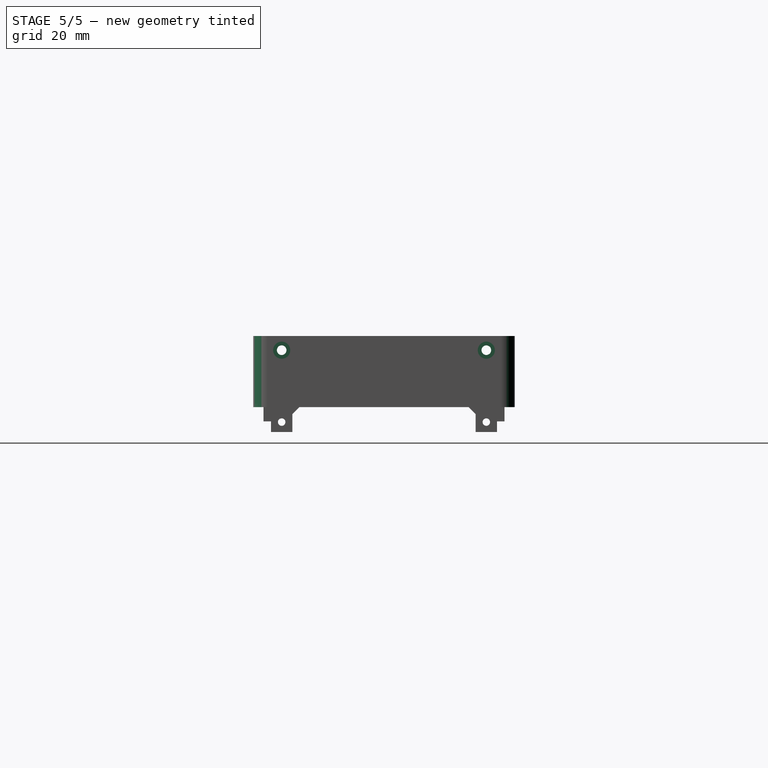
[diagram: stage 5 of 5 — right view after this stage's code; geometry added in this stage tinted green]
FEATURE [Sketcher::SketchObject] Sketch007
  ExternalGeometry = -> [Fillet001]
  FullyConstrained = false
  MapMode = 5
  Placement = pos=(0,-36.75,0) rot=(1,0,0;1.5708rad)
  Support = -> [Fillet001]
  sketch-geometry (4):
    g0: LineSegment StartX=-97.8272 StartY=36.5772 StartZ=0 EndX=103.656 EndY=36.5772 EndZ=0
    g1: LineSegment StartX=103.656 StartY=36.5772 StartZ=0 EndX=103.656 EndY=20 EndZ=0
    g2: LineSegment StartX=103.656 StartY=20 StartZ=0 EndX=-97.8272 EndY=20 EndZ=0
    g3: LineSegment StartX=-97.8272 StartY=20 StartZ=0 EndX=-97.8272 EndY=36.5772 EndZ=0
  constraints (9):
    c: Coincident(g0,g1)
    c: Coincident(g1,g2)
    c: Coincident(g2,g3)
    c: Coincident(g3,g0)
    c: Horizontal(g0)
    c: Horizontal(g2)
    c: Vertical(g1)
    c: Vertical(g3)
    c: DistanceY(g1,g-3) = 5
FEATURE [PartDesign::Pocket] Pocket003
  BaseFeature = -> Fillet001
  Length = 76
  Length2 = 100
  Profile = -> Sketch007
  Refine = true
  Type = 0
FEATURE [PartDesign::Fillet] Fillet002
  Base = -> Pocket003 [Edge87,Edge86,Edge98,Edge100]
  BaseFeature = -> Pocket003
  Radius = 4
  SupportTransform = false
FEATURE [Sketcher::SketchObject] Sketch008
  ExternalGeometry = -> [Fillet002]
  FullyConstrained = true
  MapMode = 5
  Placement = pos=(95,0,0) rot=(0.57735,0.57735,0.57735;2.0944rad)
  Support = -> [Fillet002]
  sketch-geometry (2):
    g0: Circle CenterX=-28.75 CenterY=16 CenterZ=0 NormalX=0 NormalY=0 NormalZ=1 AngleXU=0 Radius=2.4
    g1: Circle CenterX=28.75 CenterY=16 CenterZ=0 NormalX=0 NormalY=0 NormalZ=1 AngleXU=0 Radius=2.4
  constraints (6):
    c: Diameter(g0) = 4.8
    c: DistanceX(g-4,g0) = 4
    c: DistanceY(g0,g-4) = 4
    c: Equal(g0,g1) = 4.8
    c: DistanceY(g1,g-3) = 4
    c: DistanceX(g1,g-3) = 4
FEATURE [PartDesign::Pocket] Pocket004
  BaseFeature = -> Fillet002
  Length = 1.2
  Length2 = 100
  Profile = -> Sketch008
  Type = 0
FEATURE [Sketcher::SketchObject] Sketch009
  ExternalGeometry = -> [Pocket004]
  FullyConstrained = true
  MapMode = 5
  Placement = pos=(93.8,0,0) rot=(0.57735,0.57735,0.57735;2.0944rad)
  Support = -> [Pocket004]
  sketch-geometry (2):
    g0: Circle CenterX=-28.75 CenterY=16 CenterZ=0 NormalX=0 NormalY=0 NormalZ=1 AngleXU=0 Radius=1.35
    g1: Circle CenterX=28.75 CenterY=16 CenterZ=0 NormalX=0 NormalY=0 NormalZ=1 AngleXU=0 Radius=1.35
  constraints (4):
    c: Coincident(g0,g-4)
    c: Coincident(g1,g-3)
    c: Diameter(g0) = 2.7
    c: Diameter(g1) = 2.7
FEATURE [PartDesign::Pocket] Pocket005
  BaseFeature = -> Pocket004
  Length = 200
  Length2 = 100
  Profile = -> Sketch009
  Type = 0
FEATURE [Sketcher::SketchObject] Sketch010
  ExternalGeometry = -> [Pocket005]
  FullyConstrained = true
  MapMode = 5
  Placement = pos=(-95,0,0) rot=(0.57735,-0.57735,-0.57735;2.0944rad)
  Support = -> [Pocket005]
  sketch-geometry (6):
    g0: Circle CenterX=28.75 CenterY=16 CenterZ=0 NormalX=0 NormalY=0 NormalZ=1 AngleXU=0 Radius=2.4
    g1: Circle CenterX=-28.75 CenterY=16 CenterZ=0 NormalX=0 NormalY=0 NormalZ=1 AngleXU=0 Radius=2.4
    g2: LineSegment StartX=11.75 StartY=7.5 StartZ=0 EndX=24.05 EndY=7.5 EndZ=0
    g3: LineSegment StartX=24.05 StartY=7.5 StartZ=0 EndX=24.05 EndY=1.3 EndZ=0
    g4: LineSegment StartX=24.05 StartY=1.3 StartZ=0 EndX=11.75 EndY=1.3 EndZ=0
    g5: LineSegment StartX=11.75 StartY=1.3 StartZ=0 EndX=11.75 EndY=7.5 EndZ=0
  constraints (16):
    c: Coincident(g0,g-4)
    c: Diameter(g0) = 4.8
    c: Equal(g0,g1) = 4.8
    c: Coincident(g1,g-3)
    c: Coincident(g2,g3)
    c: Coincident(g3,g4)
    c: Coincident(g4,g5)
    c: Coincident(g5,g2)
    c: Horizontal(g2)
    c: Horizontal(g4)
    c: Vertical(g3)
    c: Vertical(g5)
    c: DistanceX(g-5,g2) = 1.5
    c: DistanceX(g2,g-5) = 1.5
    c: DistanceY(g-5,g2) = 1.5
    c: DistanceY(g3,g-6) = 1.5
FEATURE [PartDesign::Pocket] Pocket006
  BaseFeature = -> Pocket005
  Length = 1.2
  Length2 = 100
  Profile = -> Sketch010
  Type = 0
FEATURE [PartDesign::Fillet] Fillet003
  Base = -> Pocket006 [Edge82,Edge86,Edge81,Edge84]
  BaseFeature = -> Pocket006
  Radius = 3
  SupportTransform = false
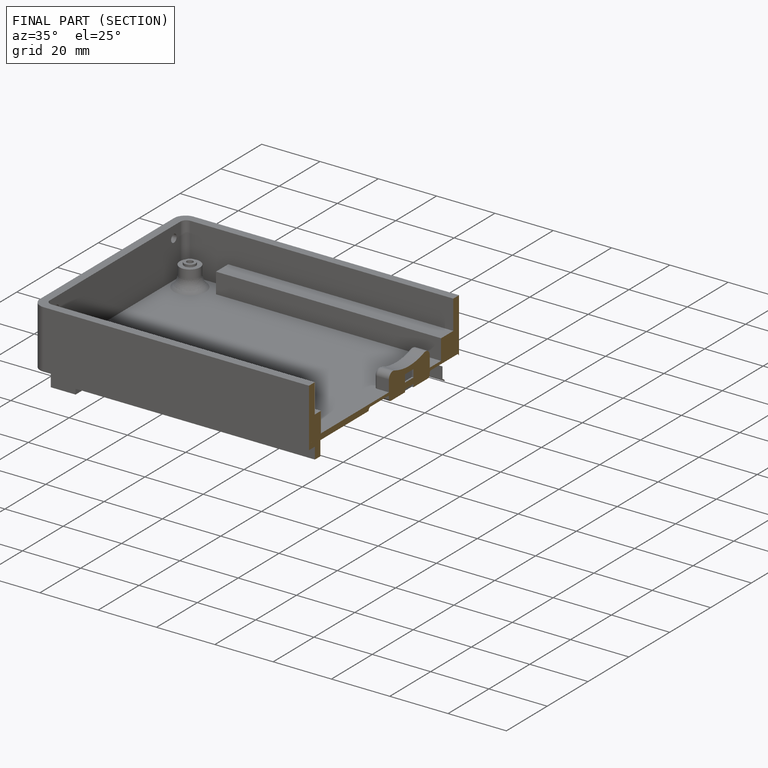
[diagram: finished part — half-section view (interior)]
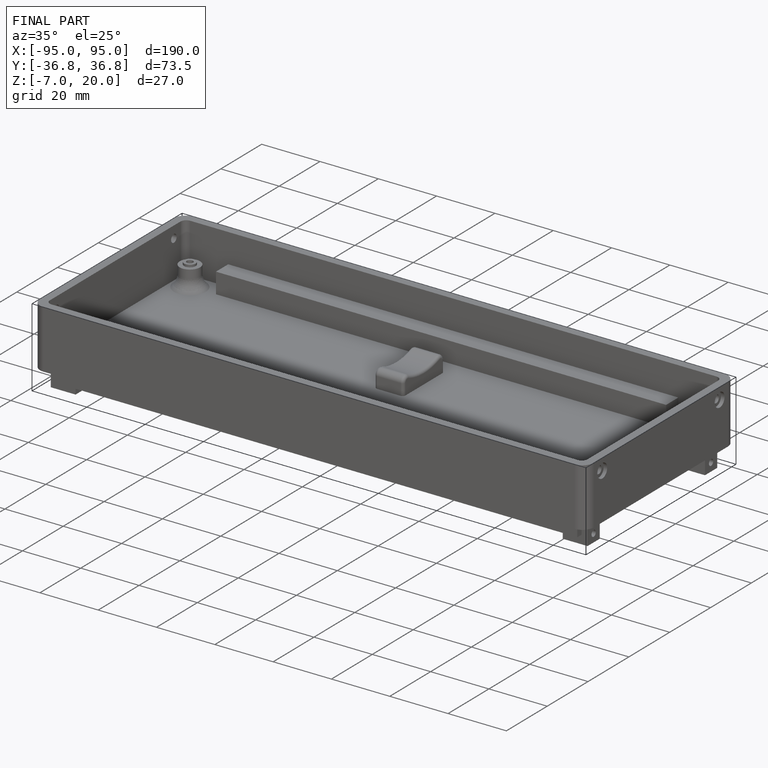
[diagram: finished part — iso view with bounding-box wireframe]
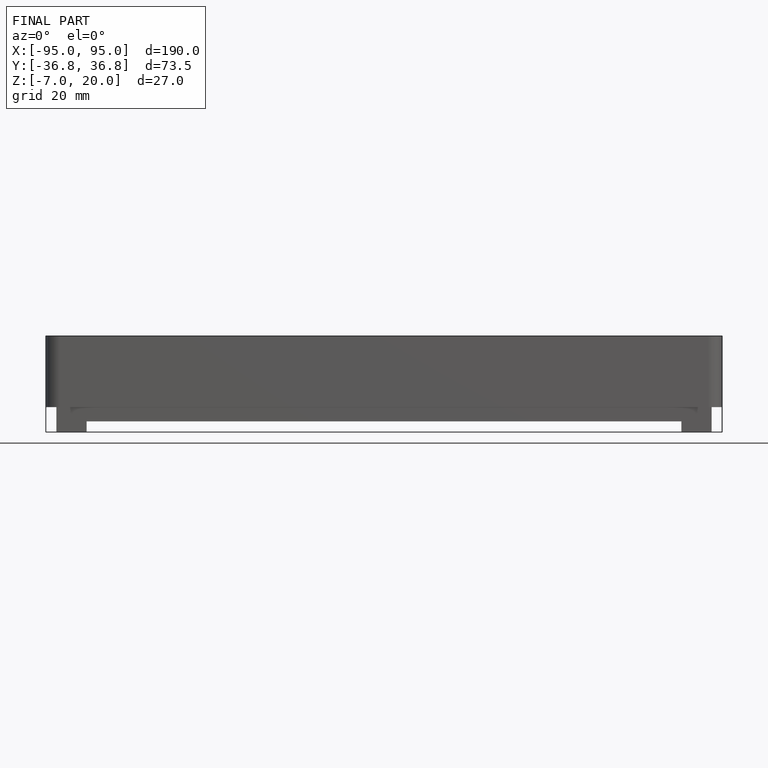
[diagram: finished part — front view with bounding-box wireframe]
